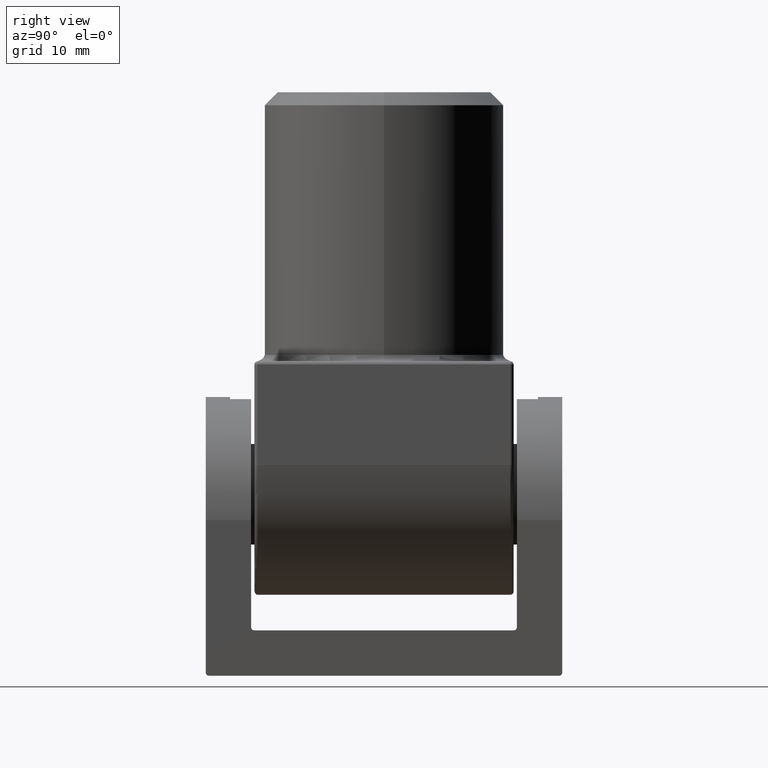
[diagram: clean part render]
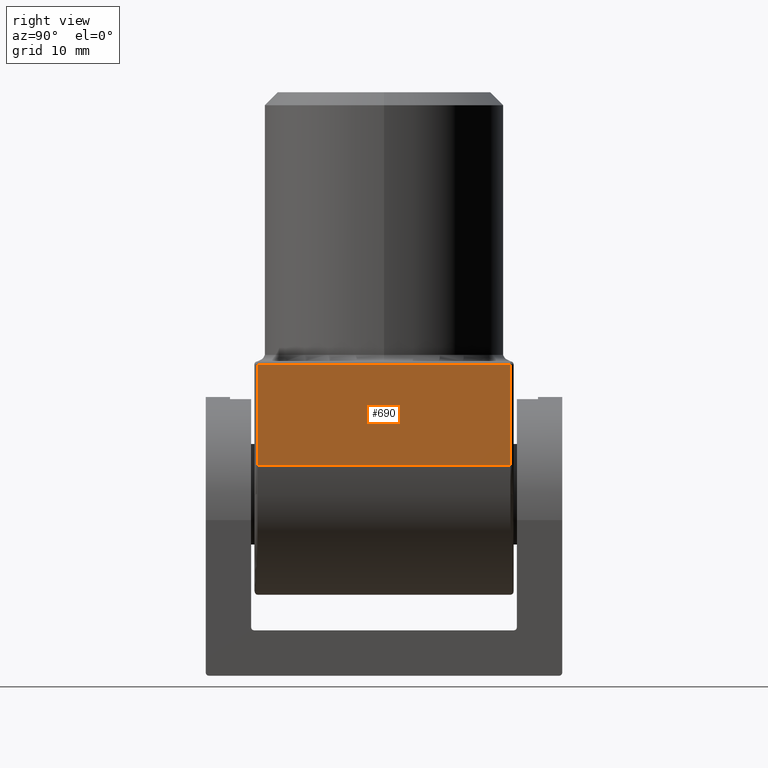
[diagram: same view with one face highlighted and labeled with its STEP entity id]
A machine part, right view. The second image highlights one B-rep face of the part: STEP entity #690.
In plain terms, the highlighted planar face has unit normal (-1, 0, -0).
Its self-contained STEP definition (entity closure, byte-faithful):
#690 = ADVANCED_FACE ( 'NONE', ( #16761 ), #10744, .F. ) ;
#2006 = ORIENTED_EDGE ( 'NONE', *, *, #2706, .F. ) ;
#2380 = LINE ( 'NONE', #6475, #5339 ) ;
#2630 = LINE ( 'NONE', #5387, #15230 ) ;
#2706 = EDGE_CURVE ( 'NONE', #11633, #14612, #2380, .T. ) ;
#3243 = VERTEX_POINT ( 'NONE', #9638 ) ;
#3608 = CARTESIAN_POINT ( 'NONE',  ( 20.00000000000000355, -19.50000000000000000, -15.99999999999998579 ) ) ;
#3837 = VECTOR ( 'NONE', #19824, 1000.000000000000000 ) ;
#4826 = LINE ( 'NONE', #10303, #15468 ) ;
#5339 = VECTOR ( 'NONE', #12698, 1000.000000000000000 ) ;
#5387 = CARTESIAN_POINT ( 'NONE',  ( 20.00000000000000000, -19.50000000000000000, 0.000000000000000000 ) ) ;
#5589 = EDGE_CURVE ( 'NONE', #9871, #14612, #2630, .T. ) ;
#6154 = EDGE_LOOP ( 'NONE', ( #18157, #16555, #2006, #15985 ) ) ;
#6475 = CARTESIAN_POINT ( 'NONE',  ( 20.00000000000000355, 20.00000000000000000, -15.99999999999998579 ) ) ;
#7022 = LINE ( 'NONE', #20093, #3837 ) ;
#9060 = CARTESIAN_POINT ( 'NONE',  ( 20.00000000000000000, -19.50000000000000000, -0.5000000000000004441 ) ) ;
#9083 = CARTESIAN_POINT ( 'NONE',  ( 20.00000000000000000, 20.00000000000000000, 0.000000000000000000 ) ) ;
#9638 = CARTESIAN_POINT ( 'NONE',  ( 20.00000000000000000, 19.50000000000000000, -0.5000000000000004441 ) ) ;
#9871 = VERTEX_POINT ( 'NONE', #9060 ) ;
#10303 = CARTESIAN_POINT ( 'NONE',  ( 20.00000000000000000, 19.50000000000000000, 0.000000000000000000 ) ) ;
#10373 = DIRECTION ( 'NONE',  ( -2.168404344971010347E-16, -0.000000000000000000, 1.000000000000000000 ) ) ;
#10612 = DIRECTION ( 'NONE',  ( -2.168404344971010347E-16, 0.000000000000000000, 1.000000000000000000 ) ) ;
#10744 = PLANE ( 'NONE',  #17478 ) ;
#11633 = VERTEX_POINT ( 'NONE', #16619 ) ;
#12237 = EDGE_CURVE ( 'NONE', #11633, #3243, #4826, .T. ) ;
#12698 = DIRECTION ( 'NONE',  ( -0.000000000000000000, -1.000000000000000000, -0.000000000000000000 ) ) ;
#14612 = VERTEX_POINT ( 'NONE', #3608 ) ;
#14852 = EDGE_CURVE ( 'NONE', #3243, #9871, #7022, .T. ) ;
#15230 = VECTOR ( 'NONE', #19687, 1000.000000000000000 ) ;
#15468 = VECTOR ( 'NONE', #10373, 1000.000000000000000 ) ;
#15985 = ORIENTED_EDGE ( 'NONE', *, *, #12237, .T. ) ;
#16555 = ORIENTED_EDGE ( 'NONE', *, *, #5589, .T. ) ;
#16619 = CARTESIAN_POINT ( 'NONE',  ( 20.00000000000000355, 19.50000000000000000, -15.99999999999998579 ) ) ;
#16761 = FACE_OUTER_BOUND ( 'NONE', #6154, .T. ) ;
#17478 = AXIS2_PLACEMENT_3D ( 'NONE', #9083, #20146, #10612 ) ;
#18157 = ORIENTED_EDGE ( 'NONE', *, *, #14852, .T. ) ;
#19687 = DIRECTION ( 'NONE',  ( 2.168404344971010347E-16, 0.000000000000000000, -1.000000000000000000 ) ) ;
#19824 = DIRECTION ( 'NONE',  ( 0.000000000000000000, -1.000000000000000000, 0.000000000000000000 ) ) ;
#20093 = CARTESIAN_POINT ( 'NONE',  ( 20.00000000000000000, 20.00000000000000000, -0.5000000000000004441 ) ) ;
#20146 = DIRECTION ( 'NONE',  ( -1.000000000000000000, 0.000000000000000000, -2.168404344971010347E-16 ) ) ;